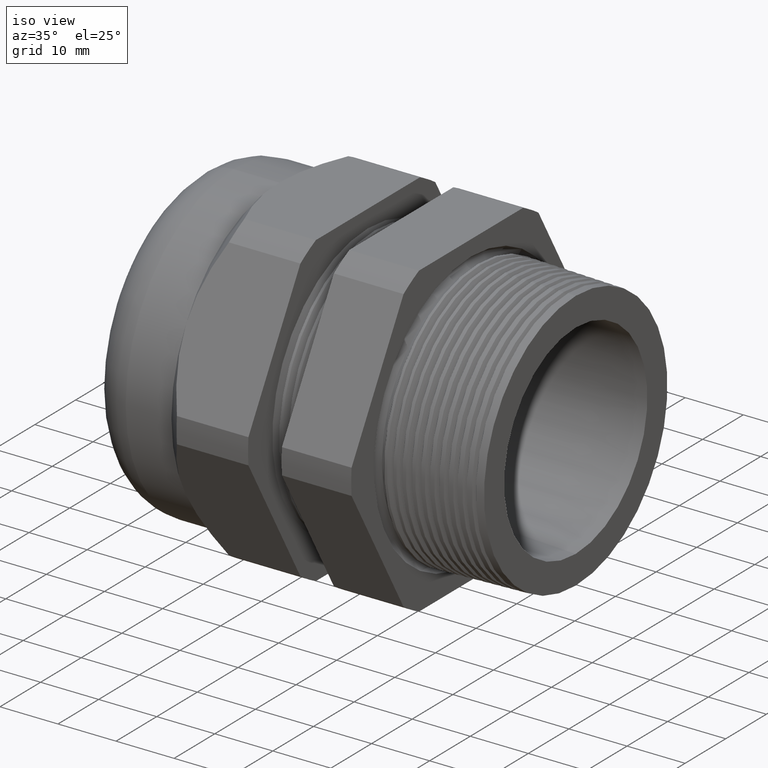
[diagram: clean part render]
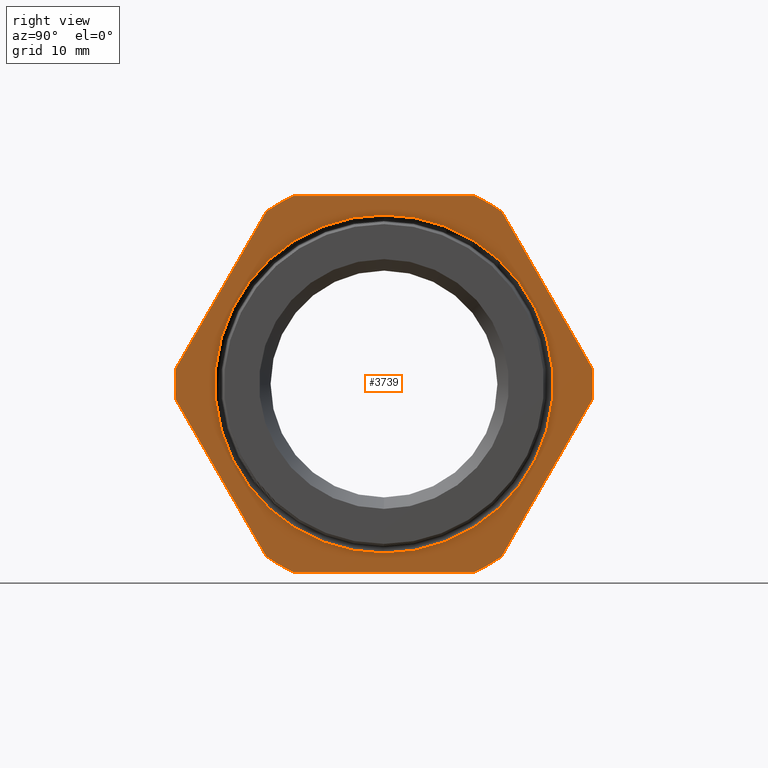
[diagram: tour spotlight — one face highlighted and labeled with its STEP entity id]
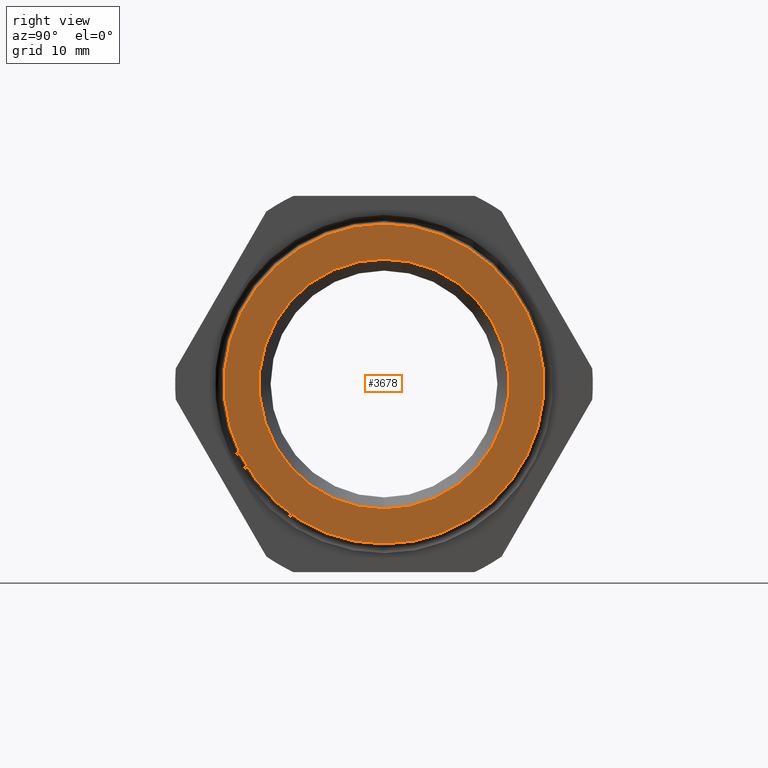
[diagram: tour spotlight — one face highlighted and labeled with its STEP entity id]
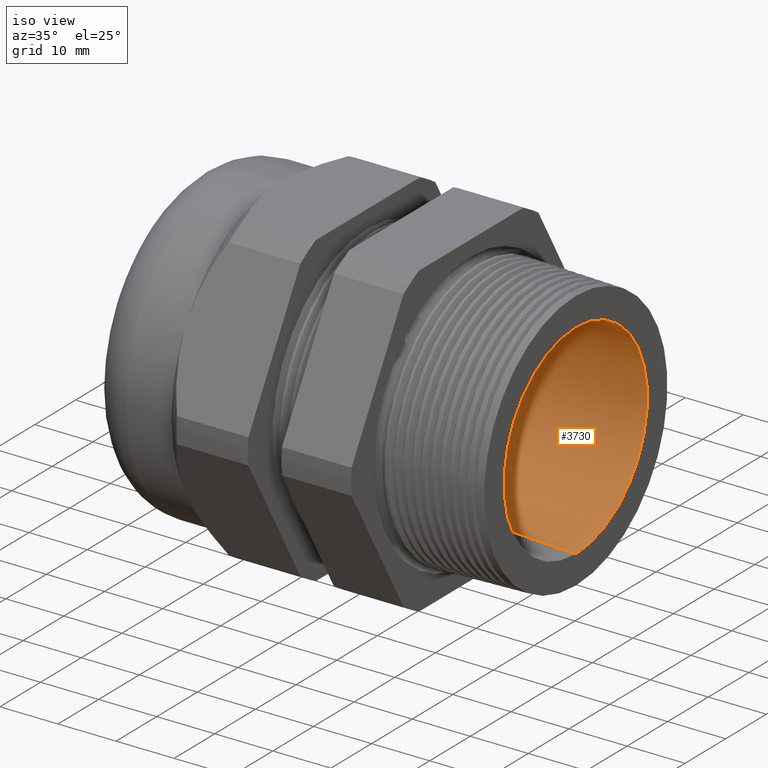
[diagram: tour spotlight — one face highlighted and labeled with its STEP entity id]
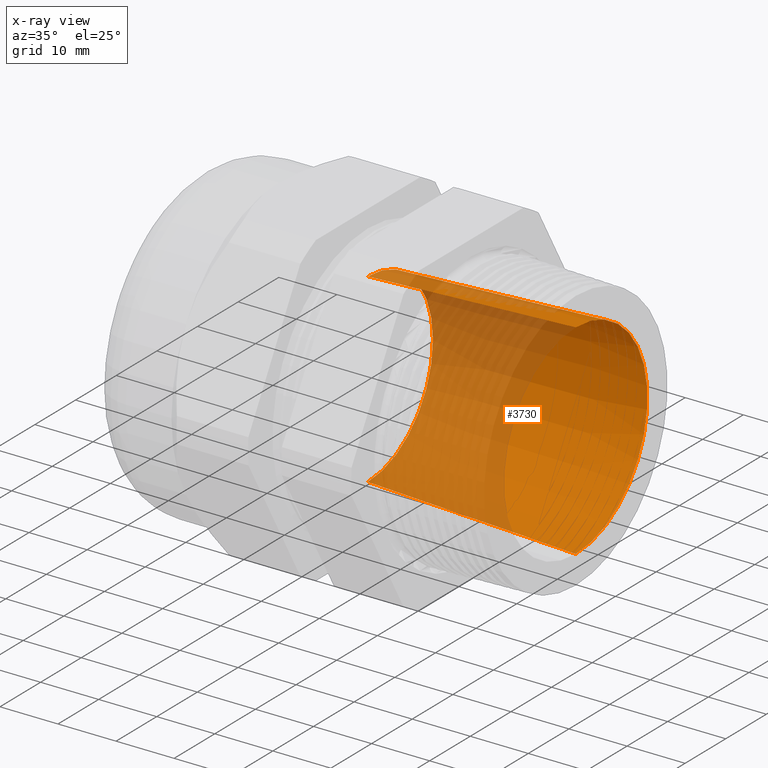
[diagram: x-ray of the same camera — body ghosted, this tour face saturated]
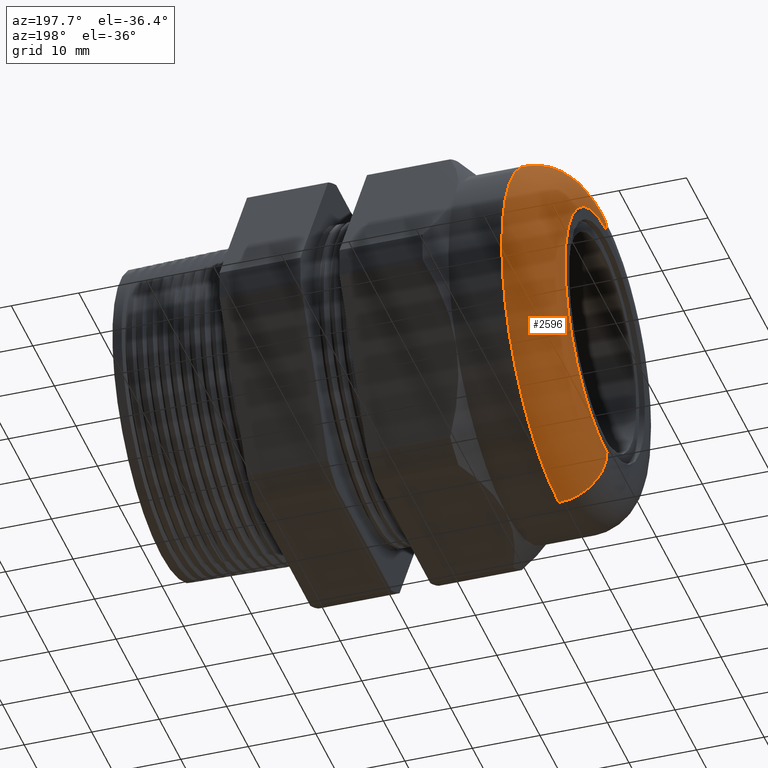
[diagram: tour spotlight — one face highlighted and labeled with its STEP entity id]
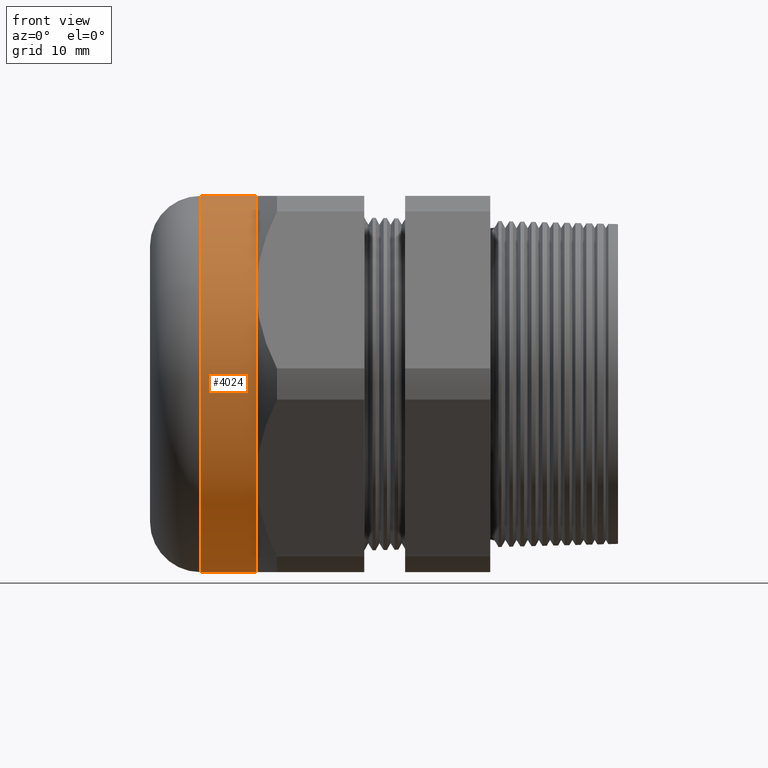
[diagram: tour spotlight — one face highlighted and labeled with its STEP entity id]
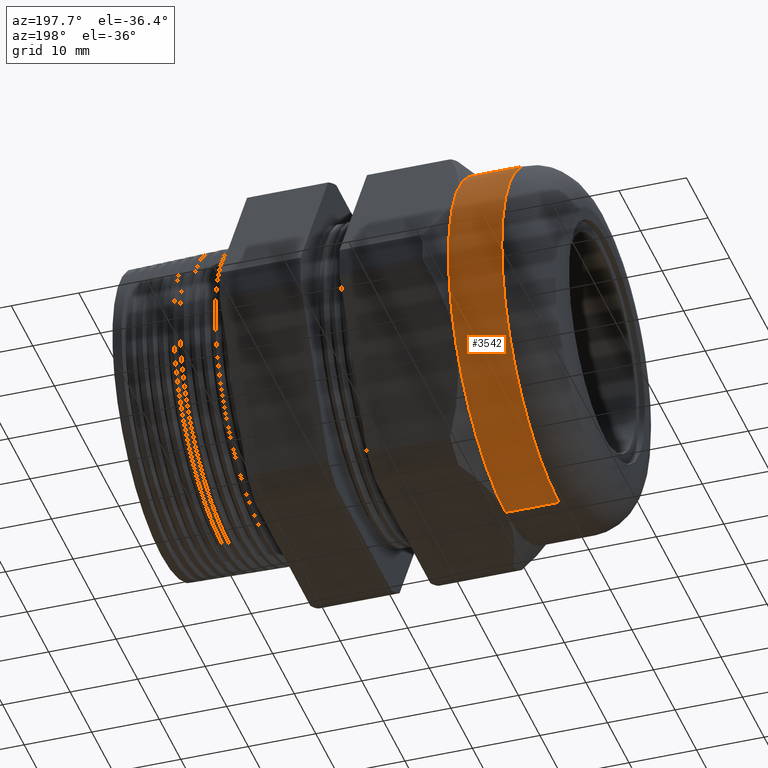
[diagram: tour spotlight — one face highlighted and labeled with its STEP entity id]
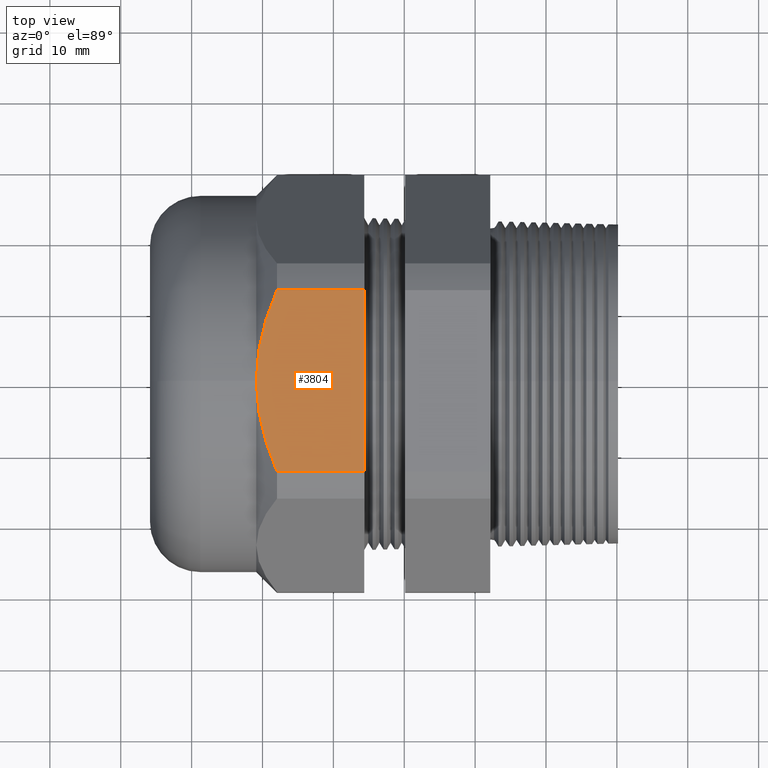
[diagram: tour spotlight — one face highlighted and labeled with its STEP entity id]
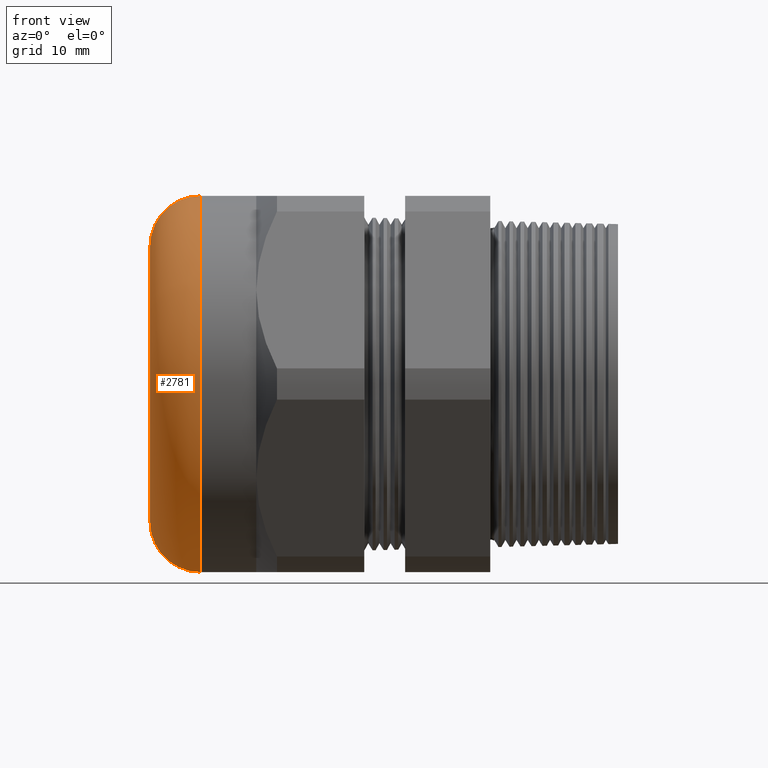
[diagram: tour spotlight — one face highlighted and labeled with its STEP entity id]
A machine part: a face-by-face anatomy tour. The part has 152 B-rep faces; the first image is the clean iso view, then the 8 largest visible faces are spotlighted one at a time (largest first), each with its STEP entity span.

Face 1 — right view, entity #3739. In plain terms, the highlighted planar face has unit normal (1, 0, 0).
Definition (entity closure, byte-faithful):
#3 = VERTEX_POINT ( 'NONE', #2849 ) ;
#15 = ORIENTED_EDGE ( 'NONE', *, *, #17, .T. ) ;
#17 = EDGE_CURVE ( 'NONE', #22, #3, #2893, .T. ) ;
#19 = EDGE_CURVE ( 'NONE', #20, #22, #2888, .T. ) ;
#20 = VERTEX_POINT ( 'NONE', #2884 ) ;
#22 = VERTEX_POINT ( 'NONE', #2883 ) ;
#23 = ORIENTED_EDGE ( 'NONE', *, *, #19, .T. ) ;
#34 = VERTEX_POINT ( 'NONE', #2929 ) ;
#44 = EDGE_CURVE ( 'NONE', #34, #50, #2919, .T. ) ;
#47 = ORIENTED_EDGE ( 'NONE', *, *, #44, .T. ) ;
#48 = EDGE_CURVE ( 'NONE', #50, #20, #2915, .T. ) ;
#49 = ORIENTED_EDGE ( 'NONE', *, *, #48, .T. ) ;
#50 = VERTEX_POINT ( 'NONE', #2910 ) ;
#68 = EDGE_LOOP ( 'NONE', ( #70, #71 ) ) ;
#69 = EDGE_CURVE ( 'NONE', #2415, #2482, #2999, .T. ) ;
#70 = ORIENTED_EDGE ( 'NONE', *, *, #2481, .T. ) ;
#71 = ORIENTED_EDGE ( 'NONE', *, *, #69, .T. ) ;
#73 = EDGE_CURVE ( 'NONE', #3, #80, #2994, .T. ) ;
#75 = ORIENTED_EDGE ( 'NONE', *, *, #73, .T. ) ;
#76 = ORIENTED_EDGE ( 'NONE', *, *, #79, .T. ) ;
#79 = EDGE_CURVE ( 'NONE', #80, #4200, #2989, .T. ) ;
#80 = VERTEX_POINT ( 'NONE', #2984 ) ;
#81 = EDGE_CURVE ( 'NONE', #88, #85, #2983, .T. ) ;
#83 = ORIENTED_EDGE ( 'NONE', *, *, #81, .T. ) ;
#84 = EDGE_CURVE ( 'NONE', #85, #3753, #2978, .T. ) ;
#85 = VERTEX_POINT ( 'NONE', #2974 ) ;
#87 = ORIENTED_EDGE ( 'NONE', *, *, #84, .T. ) ;
#88 = VERTEX_POINT ( 'NONE', #3030 ) ;
#1210 = PLANE ( 'NONE',  #1271 ) ;
#1211 = FACE_BOUND ( 'NONE', #68, .T. ) ;
#1212 = FACE_OUTER_BOUND ( 'NONE', #3729, .T. ) ;
#1221 = DIRECTION ( 'NONE',  ( 0.0000000000000000000, 0.4999999999999998300, 0.8660254037844388200 ) ) ;
#1222 = VECTOR ( 'NONE', #1221, 39.37007874015748100 ) ;
#1223 = CARTESIAN_POINT ( 'NONE',  ( -0.3100000000000000000, 1.427496546954738300, 0.3824965469547380600 ) ) ;
#1224 = LINE ( 'NONE', #1223, #1222 ) ;
#1241 = CARTESIAN_POINT ( 'NONE',  ( -0.3100000000000000000, 2.089999999999999900, 1.044999999999999500 ) ) ;
#1242 = LINE ( 'NONE', #1241, #1303 ) ;
#1247 = CARTESIAN_POINT ( 'NONE',  ( -0.3099999999999997200, 0.6532729870224198700, 0.9584979952648861000 ) ) ;
#1268 = DIRECTION ( 'NONE',  ( 0.0000000000000000000, 0.0000000000000000000, -1.000000000000000000 ) ) ;
#1269 = DIRECTION ( 'NONE',  ( 1.000000000000000000, 0.0000000000000000000, 0.0000000000000000000 ) ) ;
#1270 = CARTESIAN_POINT ( 'NONE',  ( -0.3100000000000000000, 2.089999999999999900, 0.0000000000000000000 ) ) ;
#1271 = AXIS2_PLACEMENT_3D ( 'NONE', #1270, #1269, #1268 ) ;
#1290 = DIRECTION ( 'NONE',  ( 0.0000000000000000000, 0.0000000000000000000, -1.000000000000000000 ) ) ;
#1291 = DIRECTION ( 'NONE',  ( 1.000000000000000000, 0.0000000000000000000, 0.0000000000000000000 ) ) ;
#1292 = CARTESIAN_POINT ( 'NONE',  ( -0.3100000000000000000, 0.0000000000000000000, 0.0000000000000000000 ) ) ;
#1293 = AXIS2_PLACEMENT_3D ( 'NONE', #1292, #1291, #1290 ) ;
#1294 = CIRCLE ( 'NONE', #1293, 1.159950000000000000 ) ;
#1295 = DIRECTION ( 'NONE',  ( 0.0000000000000000000, 0.0000000000000000000, -1.000000000000000000 ) ) ;
#1296 = DIRECTION ( 'NONE',  ( 1.000000000000000000, 0.0000000000000000000, 0.0000000000000000000 ) ) ;
#1297 = CARTESIAN_POINT ( 'NONE',  ( -0.3100000000000000000, 0.0000000000000000000, 0.0000000000000000000 ) ) ;
#1298 = AXIS2_PLACEMENT_3D ( 'NONE', #1297, #1296, #1295 ) ;
#1299 = CIRCLE ( 'NONE', #1298, 1.159950000000000000 ) ;
#1300 = CARTESIAN_POINT ( 'NONE',  ( -0.3099999999999997200, -0.5034471198646400800, 1.044999999999999300 ) ) ;
#1301 = CARTESIAN_POINT ( 'NONE',  ( -0.3099999999999997200, 0.5034471198646397500, 1.044999999999999500 ) ) ;
#1302 = DIRECTION ( 'NONE',  ( 0.0000000000000000000, -1.000000000000000000, 0.0000000000000000000 ) ) ;
#1303 = VECTOR ( 'NONE', #1302, 39.37007874015748100 ) ;
#2192 = CARTESIAN_POINT ( 'NONE',  ( -0.3099999999999997200, 0.6532729870224199800, -0.9584979952648857700 ) ) ;
#2415 = VERTEX_POINT ( 'NONE', #3342 ) ;
#2481 = EDGE_CURVE ( 'NONE', #2482, #2415, #3481, .T. ) ;
#2482 = VERTEX_POINT ( 'NONE', #3476 ) ;
#2849 = CARTESIAN_POINT ( 'NONE',  ( -0.3099999999999997200, -0.5034471198646384100, -1.045000000000000200 ) ) ;
#2883 = CARTESIAN_POINT ( 'NONE',  ( -0.3099999999999997200, -0.6532729870224186500, -0.9584979952648867700 ) ) ;
#2884 = CARTESIAN_POINT ( 'NONE',  ( -0.3099999999999997200, -1.156720106887057800, -0.08650200473511346400 ) ) ;
#2885 = DIRECTION ( 'NONE',  ( 0.0000000000000000000, 0.5000000000000002200, -0.8660254037844386000 ) ) ;
#2886 = VECTOR ( 'NONE', #2885, 39.37007874015747400 ) ;
#2887 = CARTESIAN_POINT ( 'NONE',  ( -0.3100000000000000000, -0.3824965469547378400, -1.427496546954738300 ) ) ;
#2888 = LINE ( 'NONE', #2887, #2886 ) ;
#2889 = DIRECTION ( 'NONE',  ( 0.0000000000000000000, 0.0000000000000000000, -1.000000000000000000 ) ) ;
#2890 = DIRECTION ( 'NONE',  ( 1.000000000000000000, 0.0000000000000000000, 0.0000000000000000000 ) ) ;
#2891 = CARTESIAN_POINT ( 'NONE',  ( -0.3100000000000000000, 0.0000000000000000000, 0.0000000000000000000 ) ) ;
#2892 = AXIS2_PLACEMENT_3D ( 'NONE', #2891, #2890, #2889 ) ;
#2893 = CIRCLE ( 'NONE', #2892, 1.159950000000000000 ) ;
#2910 = CARTESIAN_POINT ( 'NONE',  ( -0.3099999999999997200, -1.156720106887058100, 0.08650200473511256100 ) ) ;
#2911 = DIRECTION ( 'NONE',  ( 0.0000000000000000000, 0.0000000000000000000, -1.000000000000000000 ) ) ;
#2912 = DIRECTION ( 'NONE',  ( 1.000000000000000000, 0.0000000000000000000, 0.0000000000000000000 ) ) ;
#2913 = CARTESIAN_POINT ( 'NONE',  ( -0.3100000000000000000, 0.0000000000000000000, 0.0000000000000000000 ) ) ;
#2914 = AXIS2_PLACEMENT_3D ( 'NONE', #2913, #2912, #2911 ) ;
#2915 = CIRCLE ( 'NONE', #2914, 1.159950000000000000 ) ;
#2916 = DIRECTION ( 'NONE',  ( 0.0000000000000000000, -0.4999999999999997200, -0.8660254037844388200 ) ) ;
#2917 = VECTOR ( 'NONE', #2916, 39.37007874015748900 ) ;
#2918 = CARTESIAN_POINT ( 'NONE',  ( -0.3100000000000000000, -0.3824965469547395000, 1.427496546954737800 ) ) ;
#2919 = LINE ( 'NONE', #2918, #2917 ) ;
#2929 = CARTESIAN_POINT ( 'NONE',  ( -0.3099999999999997200, -0.6532729870224188700, 0.9584979952648864400 ) ) ;
#2974 = CARTESIAN_POINT ( 'NONE',  ( -0.3099999999999997200, 1.156720106887057800, 0.08650200473511426800 ) ) ;
#2975 = DIRECTION ( 'NONE',  ( 0.0000000000000000000, -0.4999999999999998900, 0.8660254037844386000 ) ) ;
#2976 = VECTOR ( 'NONE', #2975, 39.37007874015748100 ) ;
#2977 = CARTESIAN_POINT ( 'NONE',  ( -0.3100000000000000000, 1.427496546954738900, -0.3824965469547380600 ) ) ;
#2978 = LINE ( 'NONE', #2977, #2976 ) ;
#2979 = DIRECTION ( 'NONE',  ( 0.0000000000000000000, 0.0000000000000000000, -1.000000000000000000 ) ) ;
#2980 = DIRECTION ( 'NONE',  ( 1.000000000000000000, 0.0000000000000000000, 0.0000000000000000000 ) ) ;
#2981 = CARTESIAN_POINT ( 'NONE',  ( -0.3100000000000000000, 0.0000000000000000000, 0.0000000000000000000 ) ) ;
#2982 = AXIS2_PLACEMENT_3D ( 'NONE', #2981, #2980, #2979 ) ;
#2983 = CIRCLE ( 'NONE', #2982, 1.159950000000000300 ) ;
#2984 = CARTESIAN_POINT ( 'NONE',  ( -0.3099999999999997200, 0.5034471198646385300, -1.045000000000000200 ) ) ;
#2985 = DIRECTION ( 'NONE',  ( 0.0000000000000000000, 0.0000000000000000000, -1.000000000000000000 ) ) ;
#2986 = DIRECTION ( 'NONE',  ( 1.000000000000000000, 0.0000000000000000000, 0.0000000000000000000 ) ) ;
#2987 = CARTESIAN_POINT ( 'NONE',  ( -0.3100000000000000000, 0.0000000000000000000, 0.0000000000000000000 ) ) ;
#2988 = AXIS2_PLACEMENT_3D ( 'NONE', #2987, #2986, #2985 ) ;
#2989 = CIRCLE ( 'NONE', #2988, 1.159950000000000000 ) ;
#2991 = DIRECTION ( 'NONE',  ( 0.0000000000000000000, 1.000000000000000000, 0.0000000000000000000 ) ) ;
#2992 = VECTOR ( 'NONE', #2991, 39.37007874015748100 ) ;
#2993 = CARTESIAN_POINT ( 'NONE',  ( -0.3100000000000000000, 2.089999999999999900, -1.045000000000000200 ) ) ;
#2994 = LINE ( 'NONE', #2993, #2992 ) ;
#2995 = DIRECTION ( 'NONE',  ( 0.0000000000000000000, 0.0000000000000000000, -1.000000000000000000 ) ) ;
#2996 = DIRECTION ( 'NONE',  ( -1.000000000000000000, 0.0000000000000000000, 0.0000000000000000000 ) ) ;
#2997 = CARTESIAN_POINT ( 'NONE',  ( -0.3100000000000000000, 0.0000000000000000000, 0.0000000000000000000 ) ) ;
#2998 = AXIS2_PLACEMENT_3D ( 'NONE', #2997, #2996, #2995 ) ;
#2999 = CIRCLE ( 'NONE', #2998, 0.9391709214538901400 ) ;
#3030 = CARTESIAN_POINT ( 'NONE',  ( -0.3100000000000000000, 1.156720106887057800, -0.08650200473511399100 ) ) ;
#3342 = CARTESIAN_POINT ( 'NONE',  ( -0.3100000000000000000, 1.150152662810777000E-016, 0.9391709214538901400 ) ) ;
#3476 = CARTESIAN_POINT ( 'NONE',  ( -0.3100000000000000000, 0.0000000000000000000, -0.9391709214538901400 ) ) ;
#3477 = DIRECTION ( 'NONE',  ( 0.0000000000000000000, 0.0000000000000000000, -1.000000000000000000 ) ) ;
#3478 = DIRECTION ( 'NONE',  ( -1.000000000000000000, 0.0000000000000000000, 0.0000000000000000000 ) ) ;
#3479 = CARTESIAN_POINT ( 'NONE',  ( -0.3100000000000000000, 0.0000000000000000000, 0.0000000000000000000 ) ) ;
#3480 = AXIS2_PLACEMENT_3D ( 'NONE', #3479, #3478, #3477 ) ;
#3481 = CIRCLE ( 'NONE', #3480, 0.9391709214538901400 ) ;
#3729 = EDGE_LOOP ( 'NONE', ( #3733, #83, #87, #3762, #3757, #3759, #47, #49, #23, #15, #75, #76 ) ) ;
#3732 = EDGE_CURVE ( 'NONE', #4200, #88, #1224, .T. ) ;
#3733 = ORIENTED_EDGE ( 'NONE', *, *, #3732, .T. ) ;
#3739 = ADVANCED_FACE ( 'NONE', ( #1212, #1211 ), #1210, .T. ) ;
#3753 = VERTEX_POINT ( 'NONE', #1247 ) ;
#3755 = EDGE_CURVE ( 'NONE', #3756, #3758, #1242, .T. ) ;
#3756 = VERTEX_POINT ( 'NONE', #1301 ) ;
#3757 = ORIENTED_EDGE ( 'NONE', *, *, #3755, .T. ) ;
#3758 = VERTEX_POINT ( 'NONE', #1300 ) ;
#3759 = ORIENTED_EDGE ( 'NONE', *, *, #3760, .T. ) ;
#3760 = EDGE_CURVE ( 'NONE', #3758, #34, #1299, .T. ) ;
#3761 = EDGE_CURVE ( 'NONE', #3753, #3756, #1294, .T. ) ;
#3762 = ORIENTED_EDGE ( 'NONE', *, *, #3761, .T. ) ;
#4200 = VERTEX_POINT ( 'NONE', #2192 ) ;

Face 2 — right view, entity #3678. In plain terms, the highlighted planar face has unit normal (1, 0, 0).
Definition (entity closure, byte-faithful):
#959 = CARTESIAN_POINT ( 'NONE',  ( 0.4000000000000000800, 8.495987169084764700E-017, 0.6937500000000000900 ) ) ;
#1120 = DIRECTION ( 'NONE',  ( 0.0000000000000000000, 0.0000000000000000000, -1.000000000000000000 ) ) ;
#1121 = DIRECTION ( 'NONE',  ( 1.000000000000000000, 0.0000000000000000000, 0.0000000000000000000 ) ) ;
#1122 = CARTESIAN_POINT ( 'NONE',  ( 0.4000000000000000200, 0.6937500000000000900, 0.0000000000000000000 ) ) ;
#1123 = AXIS2_PLACEMENT_3D ( 'NONE', #1122, #1121, #1120 ) ;
#1124 = PLANE ( 'NONE',  #1123 ) ;
#1125 = FACE_BOUND ( 'NONE', #3679, .T. ) ;
#1126 = FACE_OUTER_BOUND ( 'NONE', #3680, .T. ) ;
#1127 = DIRECTION ( 'NONE',  ( 0.0000000000000000000, 0.0000000000000000000, -1.000000000000000000 ) ) ;
#1128 = DIRECTION ( 'NONE',  ( 1.000000000000000000, 0.0000000000000000000, 0.0000000000000000000 ) ) ;
#1129 = CARTESIAN_POINT ( 'NONE',  ( 0.4000000000000000800, 0.0000000000000000000, 0.0000000000000000000 ) ) ;
#1130 = AXIS2_PLACEMENT_3D ( 'NONE', #1129, #1128, #1127 ) ;
#1131 = CIRCLE ( 'NONE', #1130, 0.6937500000000000900 ) ;
#1158 = DIRECTION ( 'NONE',  ( 0.0000000000000000000, 0.0000000000000000000, -1.000000000000000000 ) ) ;
#1159 = DIRECTION ( 'NONE',  ( 1.000000000000000000, 0.0000000000000000000, 0.0000000000000000000 ) ) ;
#1160 = CARTESIAN_POINT ( 'NONE',  ( 0.3999999999999999700, 0.0000000000000000000, 0.0000000000000000000 ) ) ;
#1161 = AXIS2_PLACEMENT_3D ( 'NONE', #1160, #1159, #1158 ) ;
#1162 = CIRCLE ( 'NONE', #1161, 0.8880922528443195900 ) ;
#1867 = DIRECTION ( 'NONE',  ( 0.0000000000000000000, 0.0000000000000000000, -1.000000000000000000 ) ) ;
#1868 = DIRECTION ( 'NONE',  ( 1.000000000000000000, 0.0000000000000000000, 0.0000000000000000000 ) ) ;
#1869 = CARTESIAN_POINT ( 'NONE',  ( 0.3999999999999999700, 0.0000000000000000000, 0.0000000000000000000 ) ) ;
#1870 = AXIS2_PLACEMENT_3D ( 'NONE', #1869, #1868, #1867 ) ;
#1871 = CIRCLE ( 'NONE', #1870, 0.8880922528443195900 ) ;
#1873 = CARTESIAN_POINT ( 'NONE',  ( 0.3999999999999999700, 0.0000000000000000000, 0.8880922528443195900 ) ) ;
#1874 = CARTESIAN_POINT ( 'NONE',  ( 0.3999999999999999700, 1.088459086049565000E-016, -0.8880922528443195900 ) ) ;
#1911 = DIRECTION ( 'NONE',  ( 0.0000000000000000000, 0.0000000000000000000, -1.000000000000000000 ) ) ;
#1912 = DIRECTION ( 'NONE',  ( 1.000000000000000000, 0.0000000000000000000, 0.0000000000000000000 ) ) ;
#1913 = CARTESIAN_POINT ( 'NONE',  ( 0.4000000000000000800, 0.0000000000000000000, 0.0000000000000000000 ) ) ;
#1914 = AXIS2_PLACEMENT_3D ( 'NONE', #1913, #1912, #1911 ) ;
#1915 = CIRCLE ( 'NONE', #1914, 0.6937500000000000900 ) ;
#1916 = CARTESIAN_POINT ( 'NONE',  ( 0.4000000000000000800, 0.0000000000000000000, -0.6937500000000000900 ) ) ;
#3600 = VERTEX_POINT ( 'NONE', #959 ) ;
#3675 = ORIENTED_EDGE ( 'NONE', *, *, #3676, .F. ) ;
#3676 = EDGE_CURVE ( 'NONE', #4072, #3600, #1131, .T. ) ;
#3677 = ORIENTED_EDGE ( 'NONE', *, *, #3692, .T. ) ;
#3678 = ADVANCED_FACE ( 'NONE', ( #1126, #1125 ), #1124, .T. ) ;
#3679 = EDGE_LOOP ( 'NONE', ( #3675, #3740 ) ) ;
#3680 = EDGE_LOOP ( 'NONE', ( #3677, #3681 ) ) ;
#3681 = ORIENTED_EDGE ( 'NONE', *, *, #4064, .T. ) ;
#3692 = EDGE_CURVE ( 'NONE', #4063, #4062, #1162, .T. ) ;
#3740 = ORIENTED_EDGE ( 'NONE', *, *, #4073, .F. ) ;
#4062 = VERTEX_POINT ( 'NONE', #1874 ) ;
#4063 = VERTEX_POINT ( 'NONE', #1873 ) ;
#4064 = EDGE_CURVE ( 'NONE', #4062, #4063, #1871, .T. ) ;
#4072 = VERTEX_POINT ( 'NONE', #1916 ) ;
#4073 = EDGE_CURVE ( 'NONE', #3600, #4072, #1915, .T. ) ;

Face 3 — iso view, entity #3730. An x-ray twin of the same camera follows (body ghosted, this face saturated) — the face is partly hidden behind the body. In plain terms, the highlighted conical surface has half-angle 2.59 deg.
Definition (entity closure, byte-faithful):
#931 = CARTESIAN_POINT ( 'NONE',  ( -1.009449999999999500, 8.105631001856545000E-017, 0.6300000000000000000 ) ) ;
#937 = CARTESIAN_POINT ( 'NONE',  ( -1.009449999999999500, 0.0000000000000000000, -0.6300000000000000000 ) ) ;
#959 = CARTESIAN_POINT ( 'NONE',  ( 0.4000000000000000800, 8.495987169084764700E-017, 0.6937500000000000900 ) ) ;
#1127 = DIRECTION ( 'NONE',  ( 0.0000000000000000000, 0.0000000000000000000, -1.000000000000000000 ) ) ;
#1128 = DIRECTION ( 'NONE',  ( 1.000000000000000000, 0.0000000000000000000, 0.0000000000000000000 ) ) ;
#1129 = CARTESIAN_POINT ( 'NONE',  ( 0.4000000000000000800, 0.0000000000000000000, 0.0000000000000000000 ) ) ;
#1130 = AXIS2_PLACEMENT_3D ( 'NONE', #1129, #1128, #1127 ) ;
#1131 = CIRCLE ( 'NONE', #1130, 0.6937500000000000900 ) ;
#1225 = DIRECTION ( 'NONE',  ( 0.0000000000000000000, 0.0000000000000000000, -1.000000000000000000 ) ) ;
#1226 = DIRECTION ( 'NONE',  ( 1.000000000000000000, 0.0000000000000000000, 0.0000000000000000000 ) ) ;
#1227 = CARTESIAN_POINT ( 'NONE',  ( -1.009449999999999500, 0.0000000000000000000, 0.0000000000000000000 ) ) ;
#1228 = AXIS2_PLACEMENT_3D ( 'NONE', #1227, #1226, #1225 ) ;
#1229 = CONICAL_SURFACE ( 'NONE', #1228, 0.6300000000000000000, 0.04519960285840475500 ) ;
#1230 = FACE_OUTER_BOUND ( 'NONE', #3725, .T. ) ;
#1231 = DIRECTION ( 'NONE',  ( 0.0000000000000000000, 0.0000000000000000000, -1.000000000000000000 ) ) ;
#1232 = DIRECTION ( 'NONE',  ( 1.000000000000000000, 0.0000000000000000000, 0.0000000000000000000 ) ) ;
#1233 = AXIS2_PLACEMENT_3D ( 'NONE', #1238, #1232, #1231 ) ;
#1234 = CIRCLE ( 'NONE', #1233, 0.6300000000000000000 ) ;
#1238 = CARTESIAN_POINT ( 'NONE',  ( -1.009449999999999500, 0.0000000000000000000, 0.0000000000000000000 ) ) ;
#1916 = CARTESIAN_POINT ( 'NONE',  ( 0.4000000000000000800, 0.0000000000000000000, -0.6937500000000000900 ) ) ;
#1917 = DIRECTION ( 'NONE',  ( 0.9989786718499510400, 5.533470296726868500E-018, 0.04518421393482174200 ) ) ;
#1918 = VECTOR ( 'NONE', #1917, 39.37007874015748900 ) ;
#1919 = CARTESIAN_POINT ( 'NONE',  ( -1.009449999999999500, 7.715274834628325400E-017, 0.6300000000000000000 ) ) ;
#1920 = LINE ( 'NONE', #1919, #1918 ) ;
#1921 = DIRECTION ( 'NONE',  ( 0.9989786718499510400, 0.0000000000000000000, -0.04518421393482174200 ) ) ;
#1922 = VECTOR ( 'NONE', #1921, 39.37007874015748900 ) ;
#1923 = CARTESIAN_POINT ( 'NONE',  ( -1.009449999999999500, 0.0000000000000000000, -0.6300000000000000000 ) ) ;
#1928 = LINE ( 'NONE', #1923, #1922 ) ;
#3579 = VERTEX_POINT ( 'NONE', #937 ) ;
#3581 = VERTEX_POINT ( 'NONE', #931 ) ;
#3600 = VERTEX_POINT ( 'NONE', #959 ) ;
#3676 = EDGE_CURVE ( 'NONE', #4072, #3600, #1131, .T. ) ;
#3723 = EDGE_CURVE ( 'NONE', #3579, #3581, #1234, .T. ) ;
#3724 = ORIENTED_EDGE ( 'NONE', *, *, #3676, .T. ) ;
#3725 = EDGE_LOOP ( 'NONE', ( #3726, #3727, #3728, #3724 ) ) ;
#3726 = ORIENTED_EDGE ( 'NONE', *, *, #4071, .F. ) ;
#3727 = ORIENTED_EDGE ( 'NONE', *, *, #3723, .F. ) ;
#3728 = ORIENTED_EDGE ( 'NONE', *, *, #4068, .T. ) ;
#3730 = ADVANCED_FACE ( 'NONE', ( #1230 ), #1229, .F. ) ;
#4068 = EDGE_CURVE ( 'NONE', #3579, #4072, #1928, .T. ) ;
#4071 = EDGE_CURVE ( 'NONE', #3581, #3600, #1920, .T. ) ;
#4072 = VERTEX_POINT ( 'NONE', #1916 ) ;

Face 4 — auxiliary view, entity #2596. In plain terms, the highlighted toroidal blend (fillet) surface has major radius 19.431 mm and minor (blend) radius 7.112 mm.
Definition (entity closure, byte-faithful):
#182 = AXIS2_PLACEMENT_3D ( 'NONE', #246, #245, #244 ) ;
#183 = CIRCLE ( 'NONE', #182, 1.044999999999999900 ) ;
#217 = CARTESIAN_POINT ( 'NONE',  ( -2.199999999999999300, 0.0000000000000000000, 0.7649999999999999000 ) ) ;
#224 = CARTESIAN_POINT ( 'NONE',  ( -1.919999999999999500, 1.279755905108984100E-016, 1.044999999999999900 ) ) ;
#244 = DIRECTION ( 'NONE',  ( 0.0000000000000000000, 0.0000000000000000000, 1.000000000000000000 ) ) ;
#245 = DIRECTION ( 'NONE',  ( 1.000000000000000000, 0.0000000000000000000, 0.0000000000000000000 ) ) ;
#246 = CARTESIAN_POINT ( 'NONE',  ( -1.919999999999999500, 0.0000000000000000000, 0.0000000000000000000 ) ) ;
#310 = CARTESIAN_POINT ( 'NONE',  ( -2.199999999999999300, 1.108305353228354700E-016, -0.7649999999999999000 ) ) ;
#311 = DIRECTION ( 'NONE',  ( 0.0000000000000000000, 0.0000000000000000000, 1.000000000000000000 ) ) ;
#312 = DIRECTION ( 'NONE',  ( -1.000000000000000000, 0.0000000000000000000, 0.0000000000000000000 ) ) ;
#313 = CARTESIAN_POINT ( 'NONE',  ( -2.199999999999999300, 0.0000000000000000000, 0.0000000000000000000 ) ) ;
#314 = AXIS2_PLACEMENT_3D ( 'NONE', #313, #312, #311 ) ;
#315 = CIRCLE ( 'NONE', #314, 0.7649999999999999000 ) ;
#322 = DIRECTION ( 'NONE',  ( 0.0000000000000000000, 0.0000000000000000000, -1.000000000000000000 ) ) ;
#323 = DIRECTION ( 'NONE',  ( 0.0000000000000000000, -1.000000000000000000, 0.0000000000000000000 ) ) ;
#324 = CARTESIAN_POINT ( 'NONE',  ( -1.919999999999999500, 0.0000000000000000000, 0.7649999999999999000 ) ) ;
#325 = AXIS2_PLACEMENT_3D ( 'NONE', #324, #323, #322 ) ;
#326 = CIRCLE ( 'NONE', #325, 0.2800000000000000300 ) ;
#350 = CARTESIAN_POINT ( 'NONE',  ( -1.919999999999999500, 0.0000000000000000000, -1.044999999999999900 ) ) ;
#351 = DIRECTION ( 'NONE',  ( 0.0000000000000000000, 0.0000000000000000000, 1.000000000000000000 ) ) ;
#352 = DIRECTION ( 'NONE',  ( -1.000000000000000000, 0.0000000000000000000, 0.0000000000000000000 ) ) ;
#353 = CARTESIAN_POINT ( 'NONE',  ( -1.919999999999999500, 0.0000000000000000000, 0.0000000000000000000 ) ) ;
#354 = AXIS2_PLACEMENT_3D ( 'NONE', #353, #352, #351 ) ;
#355 = TOROIDAL_SURFACE ( 'NONE', #354, 0.7649999999999999000, 0.2800000000000000300 ) ;
#356 = FACE_OUTER_BOUND ( 'NONE', #2593, .T. ) ;
#357 = DIRECTION ( 'NONE',  ( 0.0000000000000000000, -1.224646799147353000E-016, 1.000000000000000000 ) ) ;
#358 = DIRECTION ( 'NONE',  ( 0.0000000000000000000, 1.000000000000000000, 1.224646799147353200E-016 ) ) ;
#359 = CARTESIAN_POINT ( 'NONE',  ( -1.919999999999999500, 9.368548013477251000E-017, -0.7649999999999999000 ) ) ;
#360 = AXIS2_PLACEMENT_3D ( 'NONE', #359, #358, #357 ) ;
#361 = CIRCLE ( 'NONE', #360, 0.2800000000000000300 ) ;
#2526 = EDGE_CURVE ( 'NONE', #2597, #2536, #183, .T. ) ;
#2536 = VERTEX_POINT ( 'NONE', #224 ) ;
#2539 = VERTEX_POINT ( 'NONE', #217 ) ;
#2540 = ORIENTED_EDGE ( 'NONE', *, *, #2580, .F. ) ;
#2550 = ORIENTED_EDGE ( 'NONE', *, *, #2526, .F. ) ;
#2580 = EDGE_CURVE ( 'NONE', #2536, #2539, #326, .T. ) ;
#2584 = ORIENTED_EDGE ( 'NONE', *, *, #2585, .F. ) ;
#2585 = EDGE_CURVE ( 'NONE', #2539, #2586, #315, .T. ) ;
#2586 = VERTEX_POINT ( 'NONE', #310 ) ;
#2593 = EDGE_LOOP ( 'NONE', ( #2550, #2594, #2584, #2540 ) ) ;
#2594 = ORIENTED_EDGE ( 'NONE', *, *, #2595, .T. ) ;
#2595 = EDGE_CURVE ( 'NONE', #2597, #2586, #361, .T. ) ;
#2596 = ADVANCED_FACE ( 'NONE', ( #356 ), #355, .T. ) ;
#2597 = VERTEX_POINT ( 'NONE', #350 ) ;

Face 5 — front view, entity #4024. In plain terms, the highlighted cylindrical surface (partial cylindrical patch) has radius 26.543 mm, axis along (1, 0, 0).
Definition (entity closure, byte-faithful):
#224 = CARTESIAN_POINT ( 'NONE',  ( -1.919999999999999500, 1.279755905108984100E-016, 1.044999999999999900 ) ) ;
#350 = CARTESIAN_POINT ( 'NONE',  ( -1.919999999999999500, 0.0000000000000000000, -1.044999999999999900 ) ) ;
#828 = DIRECTION ( 'NONE',  ( 1.000000000000000000, 0.0000000000000000000, 0.0000000000000000000 ) ) ;
#829 = VECTOR ( 'NONE', #828, 39.37007874015748100 ) ;
#830 = CARTESIAN_POINT ( 'NONE',  ( 0.0000000000000000000, 1.279755905108984100E-016, 1.044999999999999900 ) ) ;
#831 = LINE ( 'NONE', #830, #829 ) ;
#832 = CARTESIAN_POINT ( 'NONE',  ( -1.609449999999999400, 0.0000000000000000000, 1.044999999999999700 ) ) ;
#892 = DIRECTION ( 'NONE',  ( 1.000000000000000000, 0.0000000000000000000, 0.0000000000000000000 ) ) ;
#893 = VECTOR ( 'NONE', #892, 39.37007874015748100 ) ;
#894 = CARTESIAN_POINT ( 'NONE',  ( 0.0000000000000000000, 0.0000000000000000000, -1.044999999999999900 ) ) ;
#895 = LINE ( 'NONE', #894, #893 ) ;
#918 = CARTESIAN_POINT ( 'NONE',  ( -1.609449999999999400, 0.0000000000000000000, -1.045000000000000400 ) ) ;
#1318 = CARTESIAN_POINT ( 'NONE',  ( -1.609449999999999400, -0.9049965469547385200, 0.5224999999999997400 ) ) ;
#1499 = CARTESIAN_POINT ( 'NONE',  ( -1.609449999999999400, -0.9049965469547381900, -0.5225000000000000800 ) ) ;
#1803 = CYLINDRICAL_SURFACE ( 'NONE', #1804, 1.044999999999999900 ) ;
#1804 = AXIS2_PLACEMENT_3D ( 'NONE', #1864, #1863, #1862 ) ;
#1805 = FACE_OUTER_BOUND ( 'NONE', #4001, .T. ) ;
#1806 = DIRECTION ( 'NONE',  ( 0.0000000000000000000, 0.0000000000000000000, 1.000000000000000000 ) ) ;
#1807 = DIRECTION ( 'NONE',  ( 1.000000000000000000, 0.0000000000000000000, 0.0000000000000000000 ) ) ;
#1808 = CARTESIAN_POINT ( 'NONE',  ( -1.919999999999999500, 0.0000000000000000000, 0.0000000000000000000 ) ) ;
#1809 = AXIS2_PLACEMENT_3D ( 'NONE', #1808, #1807, #1806 ) ;
#1810 = CIRCLE ( 'NONE', #1809, 1.044999999999999900 ) ;
#1811 = DIRECTION ( 'NONE',  ( 0.0000000000000000000, 0.0000000000000000000, -1.000000000000000000 ) ) ;
#1812 = DIRECTION ( 'NONE',  ( 1.000000000000000000, 0.0000000000000000000, 0.0000000000000000000 ) ) ;
#1813 = CARTESIAN_POINT ( 'NONE',  ( -1.609449999999999400, 0.0000000000000000000, 0.0000000000000000000 ) ) ;
#1814 = AXIS2_PLACEMENT_3D ( 'NONE', #1813, #1812, #1811 ) ;
#1815 = CIRCLE ( 'NONE', #1814, 1.044999999999999900 ) ;
#1816 = DIRECTION ( 'NONE',  ( 0.0000000000000000000, 0.0000000000000000000, -1.000000000000000000 ) ) ;
#1817 = DIRECTION ( 'NONE',  ( 1.000000000000000000, 0.0000000000000000000, 0.0000000000000000000 ) ) ;
#1818 = CARTESIAN_POINT ( 'NONE',  ( -1.609449999999999400, 0.0000000000000000000, 0.0000000000000000000 ) ) ;
#1819 = AXIS2_PLACEMENT_3D ( 'NONE', #1818, #1817, #1816 ) ;
#1820 = CIRCLE ( 'NONE', #1819, 1.044999999999999900 ) ;
#1821 = DIRECTION ( 'NONE',  ( 0.0000000000000000000, 0.0000000000000000000, -1.000000000000000000 ) ) ;
#1822 = DIRECTION ( 'NONE',  ( 1.000000000000000000, 0.0000000000000000000, 0.0000000000000000000 ) ) ;
#1823 = AXIS2_PLACEMENT_3D ( 'NONE', #1829, #1822, #1821 ) ;
#1824 = CIRCLE ( 'NONE', #1823, 1.044999999999999900 ) ;
#1829 = CARTESIAN_POINT ( 'NONE',  ( -1.609449999999999400, 0.0000000000000000000, 0.0000000000000000000 ) ) ;
#1862 = DIRECTION ( 'NONE',  ( 0.0000000000000000000, 0.0000000000000000000, -1.000000000000000000 ) ) ;
#1863 = DIRECTION ( 'NONE',  ( 1.000000000000000000, 0.0000000000000000000, 0.0000000000000000000 ) ) ;
#1864 = CARTESIAN_POINT ( 'NONE',  ( 0.0000000000000000000, 0.0000000000000000000, 0.0000000000000000000 ) ) ;
#2536 = VERTEX_POINT ( 'NONE', #224 ) ;
#2597 = VERTEX_POINT ( 'NONE', #350 ) ;
#3537 = VERTEX_POINT ( 'NONE', #832 ) ;
#3540 = EDGE_CURVE ( 'NONE', #2536, #3537, #831, .T. ) ;
#3557 = VERTEX_POINT ( 'NONE', #918 ) ;
#3566 = EDGE_CURVE ( 'NONE', #2597, #3557, #895, .T. ) ;
#3787 = VERTEX_POINT ( 'NONE', #1318 ) ;
#3859 = VERTEX_POINT ( 'NONE', #1499 ) ;
#4001 = EDGE_LOOP ( 'NONE', ( #4022, #4021, #4020, #4018, #4013, #4016 ) ) ;
#4013 = ORIENTED_EDGE ( 'NONE', *, *, #4014, .F. ) ;
#4014 = EDGE_CURVE ( 'NONE', #3787, #3859, #1824, .T. ) ;
#4015 = EDGE_CURVE ( 'NONE', #3537, #3787, #1820, .T. ) ;
#4016 = ORIENTED_EDGE ( 'NONE', *, *, #4015, .F. ) ;
#4017 = EDGE_CURVE ( 'NONE', #3859, #3557, #1815, .T. ) ;
#4018 = ORIENTED_EDGE ( 'NONE', *, *, #4017, .F. ) ;
#4019 = EDGE_CURVE ( 'NONE', #2536, #2597, #1810, .T. ) ;
#4020 = ORIENTED_EDGE ( 'NONE', *, *, #3566, .T. ) ;
#4021 = ORIENTED_EDGE ( 'NONE', *, *, #4019, .T. ) ;
#4022 = ORIENTED_EDGE ( 'NONE', *, *, #3540, .F. ) ;
#4024 = ADVANCED_FACE ( 'NONE', ( #1805 ), #1803, .T. ) ;

Face 6 — auxiliary view, entity #3542. In plain terms, the highlighted cylindrical surface (partial cylindrical patch) has radius 26.543 mm, axis along (1, 0, 0).
Definition (entity closure, byte-faithful):
#182 = AXIS2_PLACEMENT_3D ( 'NONE', #246, #245, #244 ) ;
#183 = CIRCLE ( 'NONE', #182, 1.044999999999999900 ) ;
#224 = CARTESIAN_POINT ( 'NONE',  ( -1.919999999999999500, 1.279755905108984100E-016, 1.044999999999999900 ) ) ;
#244 = DIRECTION ( 'NONE',  ( 0.0000000000000000000, 0.0000000000000000000, 1.000000000000000000 ) ) ;
#245 = DIRECTION ( 'NONE',  ( 1.000000000000000000, 0.0000000000000000000, 0.0000000000000000000 ) ) ;
#246 = CARTESIAN_POINT ( 'NONE',  ( -1.919999999999999500, 0.0000000000000000000, 0.0000000000000000000 ) ) ;
#350 = CARTESIAN_POINT ( 'NONE',  ( -1.919999999999999500, 0.0000000000000000000, -1.044999999999999900 ) ) ;
#824 = CARTESIAN_POINT ( 'NONE',  ( 0.0000000000000000000, 0.0000000000000000000, 0.0000000000000000000 ) ) ;
#825 = AXIS2_PLACEMENT_3D ( 'NONE', #824, #885, #884 ) ;
#826 = CYLINDRICAL_SURFACE ( 'NONE', #825, 1.044999999999999900 ) ;
#827 = FACE_OUTER_BOUND ( 'NONE', #3544, .T. ) ;
#828 = DIRECTION ( 'NONE',  ( 1.000000000000000000, 0.0000000000000000000, 0.0000000000000000000 ) ) ;
#829 = VECTOR ( 'NONE', #828, 39.37007874015748100 ) ;
#830 = CARTESIAN_POINT ( 'NONE',  ( 0.0000000000000000000, 1.279755905108984100E-016, 1.044999999999999900 ) ) ;
#831 = LINE ( 'NONE', #830, #829 ) ;
#832 = CARTESIAN_POINT ( 'NONE',  ( -1.609449999999999400, 0.0000000000000000000, 1.044999999999999700 ) ) ;
#833 = CARTESIAN_POINT ( 'NONE',  ( -1.609449999999999400, 0.9049965469547388600, 0.5225000000000001900 ) ) ;
#834 = DIRECTION ( 'NONE',  ( 0.0000000000000000000, 0.0000000000000000000, -1.000000000000000000 ) ) ;
#835 = DIRECTION ( 'NONE',  ( 1.000000000000000000, 0.0000000000000000000, 0.0000000000000000000 ) ) ;
#836 = CARTESIAN_POINT ( 'NONE',  ( -1.609449999999999400, 0.0000000000000000000, 0.0000000000000000000 ) ) ;
#837 = AXIS2_PLACEMENT_3D ( 'NONE', #836, #835, #834 ) ;
#838 = CIRCLE ( 'NONE', #837, 1.044999999999999900 ) ;
#839 = DIRECTION ( 'NONE',  ( 0.0000000000000000000, 0.0000000000000000000, -1.000000000000000000 ) ) ;
#840 = DIRECTION ( 'NONE',  ( 1.000000000000000000, 0.0000000000000000000, 0.0000000000000000000 ) ) ;
#841 = CARTESIAN_POINT ( 'NONE',  ( -1.609449999999999400, 0.0000000000000000000, 0.0000000000000000000 ) ) ;
#842 = AXIS2_PLACEMENT_3D ( 'NONE', #841, #840, #839 ) ;
#843 = CIRCLE ( 'NONE', #842, 1.044999999999999900 ) ;
#884 = DIRECTION ( 'NONE',  ( 0.0000000000000000000, 0.0000000000000000000, -1.000000000000000000 ) ) ;
#885 = DIRECTION ( 'NONE',  ( 1.000000000000000000, 0.0000000000000000000, 0.0000000000000000000 ) ) ;
#892 = DIRECTION ( 'NONE',  ( 1.000000000000000000, 0.0000000000000000000, 0.0000000000000000000 ) ) ;
#893 = VECTOR ( 'NONE', #892, 39.37007874015748100 ) ;
#894 = CARTESIAN_POINT ( 'NONE',  ( 0.0000000000000000000, 0.0000000000000000000, -1.044999999999999900 ) ) ;
#895 = LINE ( 'NONE', #894, #893 ) ;
#902 = CARTESIAN_POINT ( 'NONE',  ( -1.609449999999999400, 0.9049965469547388600, -0.5225000000000000800 ) ) ;
#903 = DIRECTION ( 'NONE',  ( 0.0000000000000000000, 0.0000000000000000000, -1.000000000000000000 ) ) ;
#904 = DIRECTION ( 'NONE',  ( 1.000000000000000000, 0.0000000000000000000, 0.0000000000000000000 ) ) ;
#905 = CARTESIAN_POINT ( 'NONE',  ( -1.609449999999999400, 0.0000000000000000000, 0.0000000000000000000 ) ) ;
#906 = AXIS2_PLACEMENT_3D ( 'NONE', #905, #904, #903 ) ;
#907 = CIRCLE ( 'NONE', #906, 1.044999999999999900 ) ;
#918 = CARTESIAN_POINT ( 'NONE',  ( -1.609449999999999400, 0.0000000000000000000, -1.045000000000000400 ) ) ;
#2526 = EDGE_CURVE ( 'NONE', #2597, #2536, #183, .T. ) ;
#2536 = VERTEX_POINT ( 'NONE', #224 ) ;
#2597 = VERTEX_POINT ( 'NONE', #350 ) ;
#3532 = EDGE_CURVE ( 'NONE', #3562, #3534, #843, .T. ) ;
#3533 = EDGE_CURVE ( 'NONE', #3534, #3537, #838, .T. ) ;
#3534 = VERTEX_POINT ( 'NONE', #833 ) ;
#3535 = ORIENTED_EDGE ( 'NONE', *, *, #3532, .F. ) ;
#3537 = VERTEX_POINT ( 'NONE', #832 ) ;
#3538 = ORIENTED_EDGE ( 'NONE', *, *, #3533, .F. ) ;
#3539 = ORIENTED_EDGE ( 'NONE', *, *, #3540, .T. ) ;
#3540 = EDGE_CURVE ( 'NONE', #2536, #3537, #831, .T. ) ;
#3541 = ORIENTED_EDGE ( 'NONE', *, *, #2526, .T. ) ;
#3542 = ADVANCED_FACE ( 'NONE', ( #827 ), #826, .T. ) ;
#3544 = EDGE_LOOP ( 'NONE', ( #3541, #3539, #3538, #3535, #3563, #3564 ) ) ;
#3557 = VERTEX_POINT ( 'NONE', #918 ) ;
#3561 = EDGE_CURVE ( 'NONE', #3557, #3562, #907, .T. ) ;
#3562 = VERTEX_POINT ( 'NONE', #902 ) ;
#3563 = ORIENTED_EDGE ( 'NONE', *, *, #3561, .F. ) ;
#3564 = ORIENTED_EDGE ( 'NONE', *, *, #3566, .F. ) ;
#3566 = EDGE_CURVE ( 'NONE', #2597, #3557, #895, .T. ) ;

Face 7 — top view, entity #3804. In plain terms, the highlighted planar face has unit normal (0, 0, 1).
Definition (entity closure, byte-faithful):
#832 = CARTESIAN_POINT ( 'NONE',  ( -1.609449999999999400, 0.0000000000000000000, 1.044999999999999700 ) ) ;
#1343 = DIRECTION ( 'NONE',  ( 0.0000000000000000000, -1.000000000000000000, 0.0000000000000000000 ) ) ;
#1344 = VECTOR ( 'NONE', #1343, 39.37007874015748100 ) ;
#1345 = CARTESIAN_POINT ( 'NONE',  ( -1.009449999999999500, 0.9250000000000001600, 1.044999999999999500 ) ) ;
#1346 = LINE ( 'NONE', #1345, #1344 ) ;
#1347 = CARTESIAN_POINT ( 'NONE',  ( -1.494499999999999300, -0.5034471198646400800, 1.044999999999999300 ) ) ;
#1348 = CARTESIAN_POINT ( 'NONE',  ( -1.009449999999999100, -0.5034471198646400800, 1.044999999999999300 ) ) ;
#1349 = DIRECTION ( 'NONE',  ( -1.000000000000000000, 0.0000000000000000000, 0.0000000000000000000 ) ) ;
#1350 = VECTOR ( 'NONE', #1349, 39.37007874015748100 ) ;
#1351 = CARTESIAN_POINT ( 'NONE',  ( 0.4000000000000000800, -0.5034471198646400800, 1.044999999999999300 ) ) ;
#1352 = LINE ( 'NONE', #1351, #1350 ) ;
#1364 = CARTESIAN_POINT ( 'NONE',  ( -1.534722483841139300, 0.4026641939678189400, 1.044999999999999500 ) ) ;
#1365 = CARTESIAN_POINT ( 'NONE',  ( -1.527176621072149100, 0.4231631440832469600, 1.044999999999999500 ) ) ;
#1366 = CARTESIAN_POINT ( 'NONE',  ( -1.511374119577154600, 0.4636207977167002300, 1.044999999999999700 ) ) ;
#1367 = CARTESIAN_POINT ( 'NONE',  ( -1.503100910033209800, 0.4836304892804668700, 1.044999999999999300 ) ) ;
#1368 = CARTESIAN_POINT ( 'NONE',  ( -1.494499999999999300, 0.5034471198646397500, 1.044999999999999500 ) ) ;
#1369 = B_SPLINE_CURVE_WITH_KNOTS ( 'NONE', 3,
 ( #1368, #1367, #1366, #1365, #1364, #1419, #1418, #1417, #1416, #1415, #1414, #1413, #1412, #1411 ),
 .UNSPECIFIED., .F., .F.,
 ( 4, 2, 2, 2, 2, 2, 4 ),
 ( 0.02039820435195574200, 0.02203190909537083900, 0.02366561383878593900, 0.02693302332561613900, 0.03020043281244633900, 0.03183413755586143900, 0.03346784229927653900 ),
 .UNSPECIFIED. ) ;
#1370 = FACE_OUTER_BOUND ( 'NONE', #3784, .T. ) ;
#1380 = CARTESIAN_POINT ( 'NONE',  ( -1.494499999999999300, -0.5034471198646400800, 1.044999999999999300 ) ) ;
#1381 = CARTESIAN_POINT ( 'NONE',  ( -1.511699667379294200, -0.4638188185209417600, 1.044999999999999500 ) ) ;
#1382 = CARTESIAN_POINT ( 'NONE',  ( -1.527583944234739200, -0.4234483023531739900, 1.044999999999999300 ) ) ;
#1383 = CARTESIAN_POINT ( 'NONE',  ( -1.555968422140071100, -0.3407977905260952100, 1.044999999999999500 ) ) ;
#1384 = CARTESIAN_POINT ( 'NONE',  ( -1.568245416907577500, -0.2991342696643452000, 1.044999999999999300 ) ) ;
#1385 = CARTESIAN_POINT ( 'NONE',  ( -1.598371035920961300, -0.1730359448115066100, 1.044999999999999700 ) ) ;
#1386 = CARTESIAN_POINT ( 'NONE',  ( -1.609449999999999400, -0.08745202795108897300, 1.044999999999999700 ) ) ;
#1387 = CARTESIAN_POINT ( 'NONE',  ( -1.609449999999999400, 0.0000000000000000000, 1.044999999999999700 ) ) ;
#1388 = B_SPLINE_CURVE_WITH_KNOTS ( 'NONE', 3,
 ( #1387, #1386, #1385, #1384, #1383, #1382, #1381, #1380 ),
 .UNSPECIFIED., .F., .F.,
 ( 4, 2, 2, 4 ),
 ( 0.03346784229927653900, 0.04001292135983690300, 0.04328546089011708200, 0.04655800042039726100 ),
 .UNSPECIFIED. ) ;
#1393 = CARTESIAN_POINT ( 'NONE',  ( -1.009449999999999100, 0.5034471198646397500, 1.044999999999999500 ) ) ;
#1410 = DIRECTION ( 'NONE',  ( 1.000000000000000000, 0.0000000000000000000, 0.0000000000000000000 ) ) ;
#1411 = CARTESIAN_POINT ( 'NONE',  ( -1.609449999999999400, 0.0000000000000000000, 1.044999999999999700 ) ) ;
#1412 = CARTESIAN_POINT ( 'NONE',  ( -1.609449999999999600, 0.02182873446798872300, 1.044999999999999300 ) ) ;
#1413 = CARTESIAN_POINT ( 'NONE',  ( -1.608759348862167900, 0.04373691554683285100, 1.044999999999999300 ) ) ;
#1414 = CARTESIAN_POINT ( 'NONE',  ( -1.606047267300421600, 0.08713363206265314900, 1.044999999999999500 ) ) ;
#1415 = CARTESIAN_POINT ( 'NONE',  ( -1.604027075271274900, 0.1087024430698541200, 1.044999999999999500 ) ) ;
#1416 = CARTESIAN_POINT ( 'NONE',  ( -1.596075652805892800, 0.1730400535522959000, 1.044999999999999700 ) ) ;
#1417 = CARTESIAN_POINT ( 'NONE',  ( -1.588251749831171900, 0.2154396742832512300, 1.044999999999999700 ) ) ;
#1418 = CARTESIAN_POINT ( 'NONE',  ( -1.568176536546963100, 0.2993753196147938000, 1.044999999999999700 ) ) ;
#1419 = CARTESIAN_POINT ( 'NONE',  ( -1.555927846189894900, 0.3409118552550486300, 1.044999999999999700 ) ) ;
#1420 = DIRECTION ( 'NONE',  ( 0.0000000000000000000, 0.0000000000000000000, 1.000000000000000000 ) ) ;
#1421 = CARTESIAN_POINT ( 'NONE',  ( 0.4000000000000000800, -0.5034471198646397500, 1.044999999999999500 ) ) ;
#1422 = AXIS2_PLACEMENT_3D ( 'NONE', #1421, #1420, #1410 ) ;
#1423 = PLANE ( 'NONE',  #1422 ) ;
#1430 = DIRECTION ( 'NONE',  ( -1.000000000000000000, 0.0000000000000000000, 0.0000000000000000000 ) ) ;
#1431 = VECTOR ( 'NONE', #1430, 39.37007874015748100 ) ;
#1432 = CARTESIAN_POINT ( 'NONE',  ( 0.4000000000000000800, 0.5034471198646397500, 1.044999999999999500 ) ) ;
#1433 = LINE ( 'NONE', #1432, #1431 ) ;
#1484 = CARTESIAN_POINT ( 'NONE',  ( -1.494499999999999300, 0.5034471198646397500, 1.044999999999999500 ) ) ;
#3537 = VERTEX_POINT ( 'NONE', #832 ) ;
#3781 = ORIENTED_EDGE ( 'NONE', *, *, #3828, .T. ) ;
#3784 = EDGE_LOOP ( 'NONE', ( #3781, #3799, #3801, #3792, #3793 ) ) ;
#3789 = EDGE_CURVE ( 'NONE', #3790, #3791, #1352, .T. ) ;
#3790 = VERTEX_POINT ( 'NONE', #1348 ) ;
#3791 = VERTEX_POINT ( 'NONE', #1347 ) ;
#3792 = ORIENTED_EDGE ( 'NONE', *, *, #3789, .F. ) ;
#3793 = ORIENTED_EDGE ( 'NONE', *, *, #3794, .F. ) ;
#3794 = EDGE_CURVE ( 'NONE', #3811, #3790, #1346, .T. ) ;
#3799 = ORIENTED_EDGE ( 'NONE', *, *, #3803, .T. ) ;
#3800 = EDGE_CURVE ( 'NONE', #3537, #3791, #1388, .T. ) ;
#3801 = ORIENTED_EDGE ( 'NONE', *, *, #3800, .T. ) ;
#3803 = EDGE_CURVE ( 'NONE', #3833, #3537, #1369, .T. ) ;
#3804 = ADVANCED_FACE ( 'NONE', ( #1370 ), #1423, .T. ) ;
#3811 = VERTEX_POINT ( 'NONE', #1393 ) ;
#3828 = EDGE_CURVE ( 'NONE', #3811, #3833, #1433, .T. ) ;
#3833 = VERTEX_POINT ( 'NONE', #1484 ) ;

Face 8 — front view, entity #2781. In plain terms, the highlighted toroidal blend (fillet) surface has major radius 19.431 mm and minor (blend) radius 7.112 mm.
Definition (entity closure, byte-faithful):
#217 = CARTESIAN_POINT ( 'NONE',  ( -2.199999999999999300, 0.0000000000000000000, 0.7649999999999999000 ) ) ;
#224 = CARTESIAN_POINT ( 'NONE',  ( -1.919999999999999500, 1.279755905108984100E-016, 1.044999999999999900 ) ) ;
#310 = CARTESIAN_POINT ( 'NONE',  ( -2.199999999999999300, 1.108305353228354700E-016, -0.7649999999999999000 ) ) ;
#322 = DIRECTION ( 'NONE',  ( 0.0000000000000000000, 0.0000000000000000000, -1.000000000000000000 ) ) ;
#323 = DIRECTION ( 'NONE',  ( 0.0000000000000000000, -1.000000000000000000, 0.0000000000000000000 ) ) ;
#324 = CARTESIAN_POINT ( 'NONE',  ( -1.919999999999999500, 0.0000000000000000000, 0.7649999999999999000 ) ) ;
#325 = AXIS2_PLACEMENT_3D ( 'NONE', #324, #323, #322 ) ;
#326 = CIRCLE ( 'NONE', #325, 0.2800000000000000300 ) ;
#350 = CARTESIAN_POINT ( 'NONE',  ( -1.919999999999999500, 0.0000000000000000000, -1.044999999999999900 ) ) ;
#357 = DIRECTION ( 'NONE',  ( 0.0000000000000000000, -1.224646799147353000E-016, 1.000000000000000000 ) ) ;
#358 = DIRECTION ( 'NONE',  ( 0.0000000000000000000, 1.000000000000000000, 1.224646799147353200E-016 ) ) ;
#359 = CARTESIAN_POINT ( 'NONE',  ( -1.919999999999999500, 9.368548013477251000E-017, -0.7649999999999999000 ) ) ;
#360 = AXIS2_PLACEMENT_3D ( 'NONE', #359, #358, #357 ) ;
#361 = CIRCLE ( 'NONE', #360, 0.2800000000000000300 ) ;
#633 = DIRECTION ( 'NONE',  ( 0.0000000000000000000, 0.0000000000000000000, 1.000000000000000000 ) ) ;
#634 = DIRECTION ( 'NONE',  ( -1.000000000000000000, 0.0000000000000000000, 0.0000000000000000000 ) ) ;
#635 = AXIS2_PLACEMENT_3D ( 'NONE', #642, #634, #633 ) ;
#636 = TOROIDAL_SURFACE ( 'NONE', #635, 0.7649999999999999000, 0.2800000000000000300 ) ;
#637 = FACE_OUTER_BOUND ( 'NONE', #2782, .T. ) ;
#642 = CARTESIAN_POINT ( 'NONE',  ( -1.919999999999999500, 0.0000000000000000000, 0.0000000000000000000 ) ) ;
#1780 = DIRECTION ( 'NONE',  ( 0.0000000000000000000, 0.0000000000000000000, 1.000000000000000000 ) ) ;
#1781 = DIRECTION ( 'NONE',  ( -1.000000000000000000, 0.0000000000000000000, 0.0000000000000000000 ) ) ;
#1782 = CARTESIAN_POINT ( 'NONE',  ( -2.199999999999999300, 0.0000000000000000000, 0.0000000000000000000 ) ) ;
#1783 = AXIS2_PLACEMENT_3D ( 'NONE', #1782, #1781, #1780 ) ;
#1784 = CIRCLE ( 'NONE', #1783, 0.7649999999999999000 ) ;
#1806 = DIRECTION ( 'NONE',  ( 0.0000000000000000000, 0.0000000000000000000, 1.000000000000000000 ) ) ;
#1807 = DIRECTION ( 'NONE',  ( 1.000000000000000000, 0.0000000000000000000, 0.0000000000000000000 ) ) ;
#1808 = CARTESIAN_POINT ( 'NONE',  ( -1.919999999999999500, 0.0000000000000000000, 0.0000000000000000000 ) ) ;
#1809 = AXIS2_PLACEMENT_3D ( 'NONE', #1808, #1807, #1806 ) ;
#1810 = CIRCLE ( 'NONE', #1809, 1.044999999999999900 ) ;
#2536 = VERTEX_POINT ( 'NONE', #224 ) ;
#2539 = VERTEX_POINT ( 'NONE', #217 ) ;
#2580 = EDGE_CURVE ( 'NONE', #2536, #2539, #326, .T. ) ;
#2586 = VERTEX_POINT ( 'NONE', #310 ) ;
#2595 = EDGE_CURVE ( 'NONE', #2597, #2586, #361, .T. ) ;
#2597 = VERTEX_POINT ( 'NONE', #350 ) ;
#2781 = ADVANCED_FACE ( 'NONE', ( #637 ), #636, .T. ) ;
#2782 = EDGE_LOOP ( 'NONE', ( #2836, #2837, #2838, #2839 ) ) ;
#2836 = ORIENTED_EDGE ( 'NONE', *, *, #2595, .F. ) ;
#2837 = ORIENTED_EDGE ( 'NONE', *, *, #4019, .F. ) ;
#2838 = ORIENTED_EDGE ( 'NONE', *, *, #2580, .T. ) ;
#2839 = ORIENTED_EDGE ( 'NONE', *, *, #4005, .F. ) ;
#4005 = EDGE_CURVE ( 'NONE', #2586, #2539, #1784, .T. ) ;
#4019 = EDGE_CURVE ( 'NONE', #2536, #2597, #1810, .T. ) ;